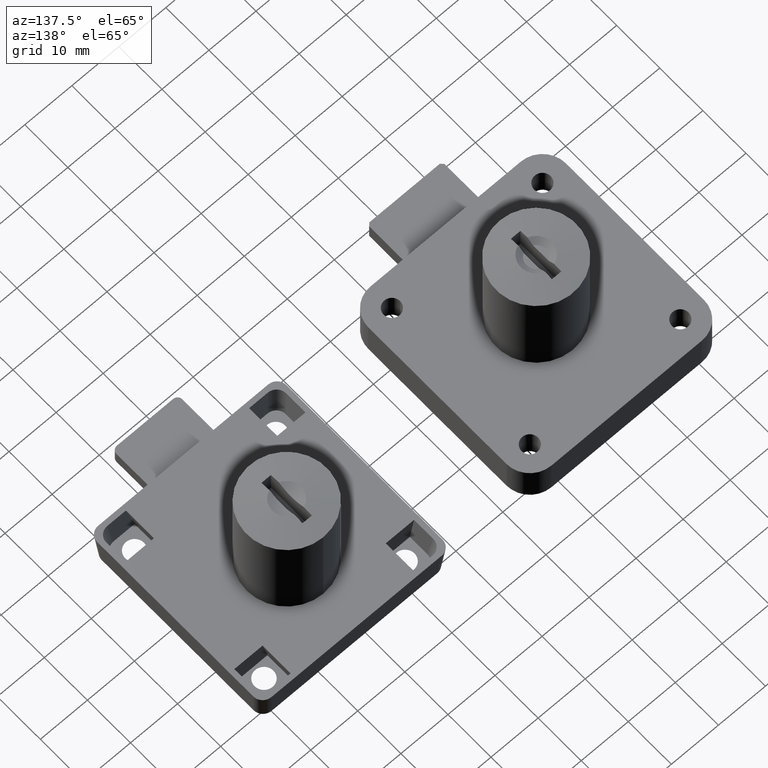
[diagram: clean part render]
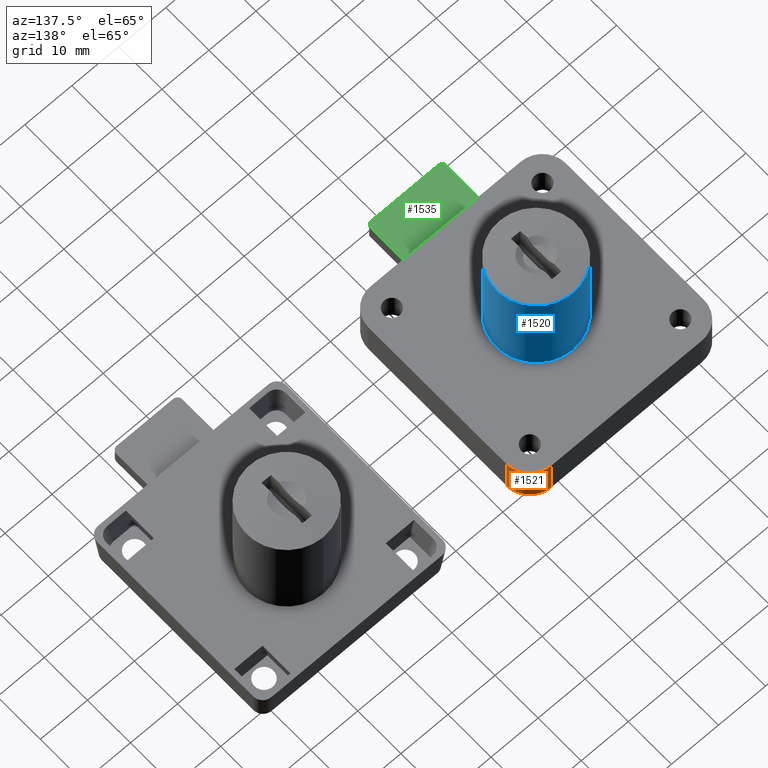
[diagram: same view with three faces highlighted in distinct colors, each labeled with its STEP entity id]
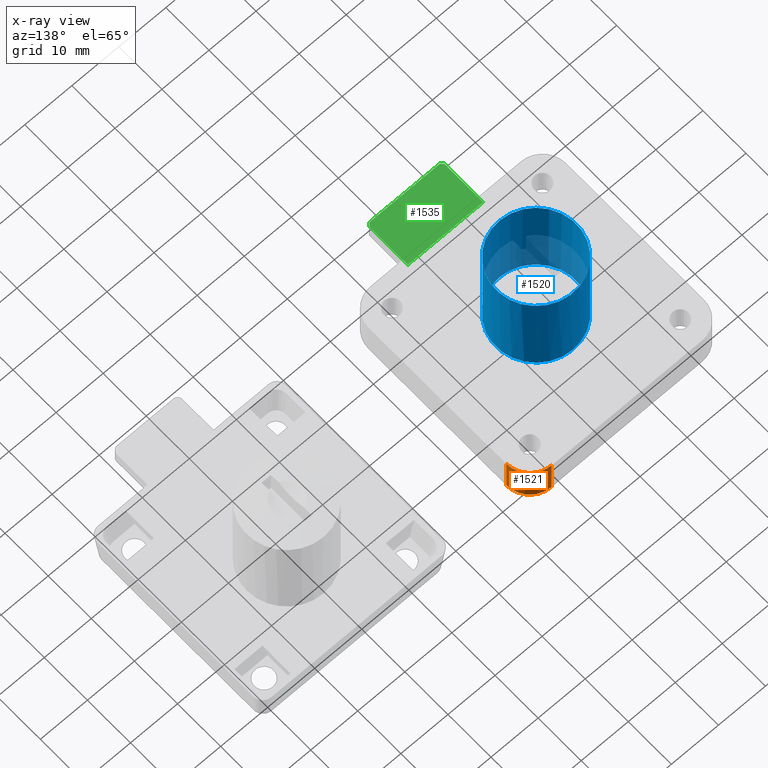
[diagram: x-ray of the same camera — body ghosted, the three highlighted faces saturated]
A machine part, auxiliary view with three faces highlighted in distinct colors.
The next image is the same camera in x-ray (body ghosted, the three faces saturated) — at least one of them is partly hidden behind the body in this view.
Their STEP definitions:

[orange] entity #1521 — the highlighted cylindrical surface (edge-blend (fillet) strip) has radius 5 mm, axis along (0, 0, 1).
#42=CYLINDRICAL_SURFACE('',#1638,5.);
#129=FACE_OUTER_BOUND('',#230,.T.);
#230=EDGE_LOOP('',(#1092,#1093,#1094,#1095));
#345=LINE('',#2357,#479);
#346=LINE('',#2360,#480);
#479=VECTOR('',#1856,8.);
#480=VECTOR('',#1859,8.);
#627=CIRCLE('',#1639,5.);
#628=CIRCLE('',#1640,5.);
#697=VERTEX_POINT('',#2353);
#698=VERTEX_POINT('',#2354);
#699=VERTEX_POINT('',#2356);
#700=VERTEX_POINT('',#2358);
#853=EDGE_CURVE('',#697,#698,#627,.T.);
#854=EDGE_CURVE('',#697,#699,#345,.T.);
#855=EDGE_CURVE('',#700,#699,#628,.T.);
#856=EDGE_CURVE('',#698,#700,#346,.T.);
#1092=ORIENTED_EDGE('',*,*,#853,.F.);
#1093=ORIENTED_EDGE('',*,*,#854,.T.);
#1094=ORIENTED_EDGE('',*,*,#855,.F.);
#1095=ORIENTED_EDGE('',*,*,#856,.F.);
#1521=ADVANCED_FACE('',(#129),#42,.T.);
#1638=AXIS2_PLACEMENT_3D('',#2352,#1852,#1853);
#1639=AXIS2_PLACEMENT_3D('',#2355,#1854,#1855);
#1640=AXIS2_PLACEMENT_3D('',#2359,#1857,#1858);
#1852=DIRECTION('center_axis',(0.,0.,1.));
#1853=DIRECTION('ref_axis',(-1.,0.,0.));
#1854=DIRECTION('center_axis',(0.,0.,-1.));
#1855=DIRECTION('ref_axis',(-1.,0.,0.));
#1856=DIRECTION('',(0.,0.,1.));
#1857=DIRECTION('center_axis',(0.,0.,1.));
#1858=DIRECTION('ref_axis',(-1.,0.,0.));
#1859=DIRECTION('',(0.,0.,1.));
#2352=CARTESIAN_POINT('Origin',(16.,16.,0.));
#2353=CARTESIAN_POINT('',(16.,21.,0.));
#2354=CARTESIAN_POINT('',(21.,16.,0.));
#2355=CARTESIAN_POINT('Origin',(16.,16.,0.));
#2356=CARTESIAN_POINT('',(16.,21.,8.));
#2357=CARTESIAN_POINT('',(16.,21.,0.));
#2358=CARTESIAN_POINT('',(21.,16.,8.));
#2359=CARTESIAN_POINT('Origin',(16.,16.,8.));
#2360=CARTESIAN_POINT('',(21.,16.,0.));

[blue] entity #1520 — the highlighted cylindrical surface (bore or boss wall) has radius 8.5 mm, axis along (0, 0, -1).
#41=CYLINDRICAL_SURFACE('',#1636,8.49999999999999);
#70=FACE_BOUND('',#229,.T.);
#128=FACE_OUTER_BOUND('',#228,.T.);
#228=EDGE_LOOP('',(#1090));
#229=EDGE_LOOP('',(#1091));
#613=CIRCLE('',#1615,8.49999999999998);
#626=CIRCLE('',#1637,8.49999999999999);
#683=VERTEX_POINT('',#2315);
#696=VERTEX_POINT('',#2350);
#839=EDGE_CURVE('',#683,#683,#613,.T.);
#852=EDGE_CURVE('',#696,#696,#626,.T.);
#1090=ORIENTED_EDGE('',*,*,#839,.F.);
#1091=ORIENTED_EDGE('',*,*,#852,.F.);
#1520=ADVANCED_FACE('',(#128,#70),#41,.T.);
#1615=AXIS2_PLACEMENT_3D('',#2316,#1806,#1807);
#1636=AXIS2_PLACEMENT_3D('',#2349,#1848,#1849);
#1637=AXIS2_PLACEMENT_3D('',#2351,#1850,#1851);
#1806=DIRECTION('center_axis',(0.,7.09172355808631E-17,1.));
#1807=DIRECTION('ref_axis',(1.,0.,0.));
#1848=DIRECTION('center_axis',(0.,1.21115239050017E-16,-1.));
#1849=DIRECTION('ref_axis',(0.,-1.,0.));
#1850=DIRECTION('center_axis',(0.,0.,-1.));
#1851=DIRECTION('ref_axis',(0.,-1.,0.));
#2315=CARTESIAN_POINT('',(0.,-8.49999999999998,29.));
#2316=CARTESIAN_POINT('Origin',(0.,3.43704492724676E-15,29.));
#2349=CARTESIAN_POINT('Origin',(0.,-1.66533453693773E-15,13.75));
#2350=CARTESIAN_POINT('',(1.04094977927525E-15,8.49999999999999,8.));
#2351=CARTESIAN_POINT('Origin',(0.,-9.68921912400137E-16,8.));

[green] entity #1535 — the highlighted planar face has unit normal (0, 0, 1).
#143=FACE_OUTER_BOUND('',#253,.T.);
#253=EDGE_LOOP('',(#1167,#1168,#1169,#1170,#1171,#1172));
#363=LINE('',#2409,#497);
#367=LINE('',#2416,#501);
#372=LINE('',#2427,#506);
#374=LINE('',#2431,#508);
#375=LINE('',#2433,#509);
#376=LINE('',#2434,#510);
#497=VECTOR('',#1908,0.707106781186547);
#501=VECTOR('',#1914,15.);
#506=VECTOR('',#1923,0.707106781186547);
#508=VECTOR('',#1927,9.);
#509=VECTOR('',#1928,16.);
#510=VECTOR('',#1929,9.);
#715=VERTEX_POINT('',#2406);
#716=VERTEX_POINT('',#2408);
#718=VERTEX_POINT('',#2414);
#722=VERTEX_POINT('',#2426);
#723=VERTEX_POINT('',#2430);
#724=VERTEX_POINT('',#2432);
#879=EDGE_CURVE('',#715,#716,#363,.T.);
#883=EDGE_CURVE('',#718,#715,#367,.T.);
#888=EDGE_CURVE('',#722,#718,#372,.T.);
#890=EDGE_CURVE('',#723,#722,#374,.T.);
#891=EDGE_CURVE('',#724,#723,#375,.T.);
#892=EDGE_CURVE('',#724,#716,#376,.T.);
#1167=ORIENTED_EDGE('',*,*,#879,.F.);
#1168=ORIENTED_EDGE('',*,*,#883,.F.);
#1169=ORIENTED_EDGE('',*,*,#888,.F.);
#1170=ORIENTED_EDGE('',*,*,#890,.F.);
#1171=ORIENTED_EDGE('',*,*,#891,.F.);
#1172=ORIENTED_EDGE('',*,*,#892,.T.);
#1462=PLANE('',#1660);
#1535=ADVANCED_FACE('',(#143),#1462,.T.);
#1660=AXIS2_PLACEMENT_3D('',#2429,#1925,#1926);
#1908=DIRECTION('',(-0.707106781186549,0.707106781186546,0.));
#1914=DIRECTION('',(-1.,0.,0.));
#1923=DIRECTION('',(-0.707106781186549,-0.707106781186546,0.));
#1925=DIRECTION('center_axis',(0.,0.,1.));
#1926=DIRECTION('ref_axis',(-1.,0.,0.));
#1927=DIRECTION('',(0.,-1.,0.));
#1928=DIRECTION('',(1.,0.,0.));
#1929=DIRECTION('',(0.,-1.,0.));
#2406=CARTESIAN_POINT('',(-7.5,-30.5,4.5));
#2408=CARTESIAN_POINT('',(-8.,-30.,4.5));
#2409=CARTESIAN_POINT('',(-6.12499999999998,-31.875,4.5));
#2414=CARTESIAN_POINT('',(7.5,-30.5,4.5));
#2416=CARTESIAN_POINT('',(-8.,-30.5,4.5));
#2426=CARTESIAN_POINT('',(8.,-30.,4.5));
#2427=CARTESIAN_POINT('',(10.125,-27.875,4.5));
#2429=CARTESIAN_POINT('Origin',(8.,-21.,4.5));
#2430=CARTESIAN_POINT('',(8.,-21.,4.5));
#2431=CARTESIAN_POINT('',(8.,-21.,4.5));
#2432=CARTESIAN_POINT('',(-8.,-21.,4.5));
#2433=CARTESIAN_POINT('',(-8.,-21.,4.5));
#2434=CARTESIAN_POINT('',(-8.,-21.,4.5));